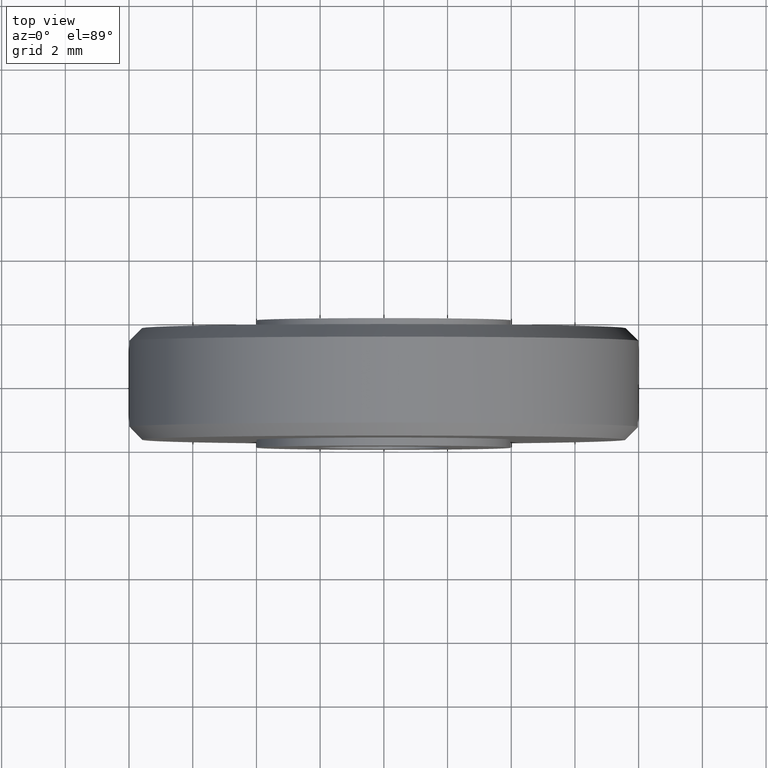
[diagram: clean part render]
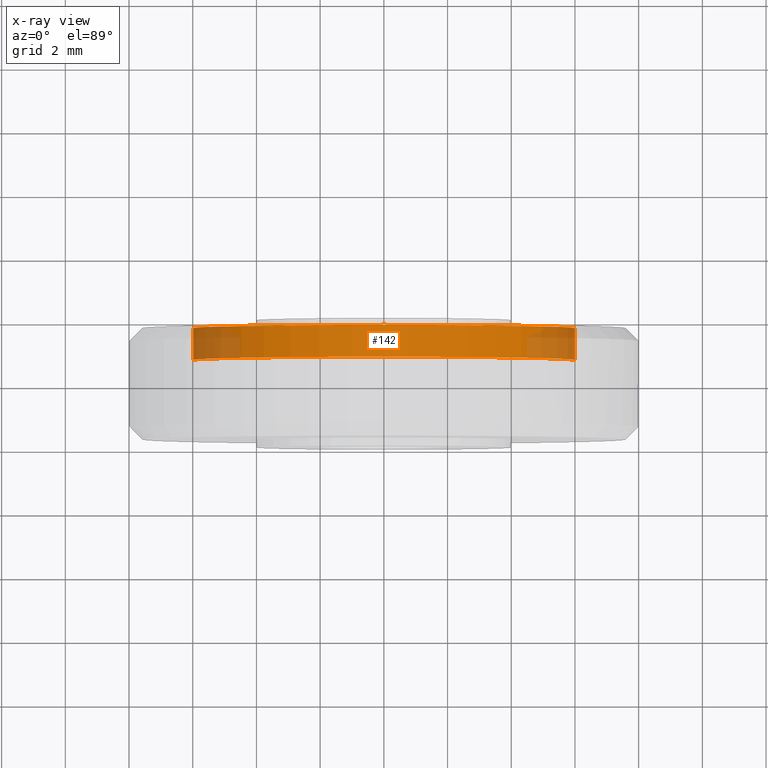
[diagram: x-ray — body ghosted, one internal face saturated and labeled with its STEP entity id]
A machine part, top view, then the same camera in x-ray: the body is ghosted and one INTERNAL B-rep face — a face not visible from any outside direction — is saturated and labeled: STEP entity #142.
In plain terms, the highlighted face is a freeform B-spline surface patch.
Its self-contained STEP definition (entity closure, byte-faithful):
#44=CARTESIAN_POINT('',(-5.981504002398766,2.725000000000000,0.470754574367073));
#45=CARTESIAN_POINT('',(-5.510749428031692,2.725000000000000,6.452258576765839));
#46=CARTESIAN_POINT('',(0.470754574367073,2.725000000000000,5.981504002398766));
#47=CARTESIAN_POINT('',(6.452258576765839,2.725000000000000,5.510749428031692));
#48=CARTESIAN_POINT('',(5.981504002398766,2.725000000000000,-0.470754574367073));
#49=CARTESIAN_POINT('',(-5.981504002398766,3.775625000000001,0.470754574367073));
#50=CARTESIAN_POINT('',(-5.510749428031692,3.775625000000000,6.452258576765839));
#51=CARTESIAN_POINT('',(0.470754574367073,3.775625000000001,5.981504002398766));
#52=CARTESIAN_POINT('',(6.452258576765839,3.775625000000000,5.510749428031692));
#53=CARTESIAN_POINT('',(5.981504002398766,3.775625000000001,-0.470754574367073));
#61=(BOUNDED_SURFACE()B_SPLINE_SURFACE(2,1,((#44,#49),(#45,#50),(#46,#51),(#47,#52),(#48,#53)),.UNSPECIFIED.,.F.,.F.,.U.)B_SPLINE_SURFACE_WITH_KNOTS((3,2,3),(2,2),(0.0,9.941125496954280,19.882250993908560),(0.0,1.0),.UNSPECIFIED.)GEOMETRIC_REPRESENTATION_ITEM()RATIONAL_B_SPLINE_SURFACE(((1.0,1.0),(0.707106781186548,0.707106781186548),(1.0,1.0),(0.707106781186548,0.707106781186548),(1.0,1.0)))REPRESENTATION_ITEM('')SURFACE());
#62=CARTESIAN_POINT('',(0.0,2.750000000000000,6.0));
#63=VERTEX_POINT('',#62);
#64=CARTESIAN_POINT('',(-5.981504336583802,2.749999999999931,0.470750328105054));
#65=VERTEX_POINT('',#64);
#66=CARTESIAN_POINT('',(0.0,2.750000000000000,6.0));
#67=CARTESIAN_POINT('',(-5.546346899467104,2.750000000000000,6.0));
#68=CARTESIAN_POINT('',(-5.981504336583802,2.749999999999931,0.470750328105054));
#76=(BOUNDED_CURVE()B_SPLINE_CURVE(2,(#66,#67,#68),.UNSPECIFIED.,.F.,.U.)B_SPLINE_CURVE_WITH_KNOTS((3,3),(0.0,0.236331422326802),.UNSPECIFIED.)CURVE()GEOMETRIC_REPRESENTATION_ITEM()RATIONAL_B_SPLINE_CURVE((1.0,0.723120516031767,0.969723610138121))REPRESENTATION_ITEM(''));
#77=EDGE_CURVE('',#63,#65,#76,.T.);
#78=ORIENTED_EDGE('',*,*,#77,.T.);
#79=CARTESIAN_POINT('',(-5.981504332555334,3.750000000000000,0.470750379292515));
#80=VERTEX_POINT('',#79);
#81=CARTESIAN_POINT('',(-5.981504336583802,2.749999999999931,0.470750328105054));
#82=CARTESIAN_POINT('',(-5.981504332555334,3.750000000000000,0.470750379292515));
#83=QUASI_UNIFORM_CURVE('',1,(#81,#82),.UNSPECIFIED.,.F.,.U.);
#84=EDGE_CURVE('',#65,#80,#83,.T.);
#85=ORIENTED_EDGE('',*,*,#84,.T.);
#86=CARTESIAN_POINT('',(0.0,3.750000000000000,6.0));
#87=VERTEX_POINT('',#86);
#88=CARTESIAN_POINT('',(0.0,3.750000000000000,6.0));
#89=CARTESIAN_POINT('',(-5.546346851856796,3.750000000000000,6.0));
#90=CARTESIAN_POINT('',(-5.981504332555335,3.750000000000000,0.470750379292515));
#98=(BOUNDED_CURVE()B_SPLINE_CURVE(2,(#88,#89,#90),.UNSPECIFIED.,.F.,.U.)B_SPLINE_CURVE_WITH_KNOTS((3,3),(0.0,0.236331420859815),.UNSPECIFIED.)CURVE()GEOMETRIC_REPRESENTATION_ITEM()RATIONAL_B_SPLINE_CURVE((1.0,0.723120517750448,0.969723607076629))REPRESENTATION_ITEM(''));
#99=EDGE_CURVE('',#87,#80,#98,.T.);
#100=ORIENTED_EDGE('',*,*,#99,.F.);
#101=CARTESIAN_POINT('',(5.981504332555334,3.750000000000000,-0.470750379292515));
#102=VERTEX_POINT('',#101);
#103=CARTESIAN_POINT('',(5.981504332555335,3.750000000000000,-0.470750379292515));
#104=CARTESIAN_POINT('',(6.0,3.750000000000000,-0.235738534774877));
#105=CARTESIAN_POINT('',(6.0,3.750000000000000,0.0));
#106=CARTESIAN_POINT('',(6.0,3.749999999999999,6.0));
#107=CARTESIAN_POINT('',(0.0,3.750000000000000,6.0));
#115=(BOUNDED_CURVE()B_SPLINE_CURVE(2,(#103,#104,#105,#106,#107),.UNSPECIFIED.,.F.,.U.)B_SPLINE_CURVE_WITH_KNOTS((3,2,3),(0.736331420859815,0.750000000000000,1.0),.UNSPECIFIED.)CURVE()GEOMETRIC_REPRESENTATION_ITEM()RATIONAL_B_SPLINE_CURVE((0.969723607076629,0.983986263436099,1.0,0.707106781186548,1.0))REPRESENTATION_ITEM(''));
#116=EDGE_CURVE('',#102,#87,#115,.T.);
#117=ORIENTED_EDGE('',*,*,#116,.F.);
#118=CARTESIAN_POINT('',(5.981504336583802,2.749999999999931,-0.470750328105053));
#119=VERTEX_POINT('',#118);
#120=CARTESIAN_POINT('',(5.981504336583802,2.749999999999931,-0.470750328105053));
#121=CARTESIAN_POINT('',(5.981504332555334,3.750000000000000,-0.470750379292515));
#122=QUASI_UNIFORM_CURVE('',1,(#120,#121),.UNSPECIFIED.,.F.,.U.);
#123=EDGE_CURVE('',#119,#102,#122,.T.);
#124=ORIENTED_EDGE('',*,*,#123,.F.);
#125=CARTESIAN_POINT('',(5.981504336583802,2.749999999999931,-0.470750328105053));
#126=CARTESIAN_POINT('',(6.0,2.750000000000000,-0.235738509062377));
#127=CARTESIAN_POINT('',(6.0,2.750000000000000,0.0));
#128=CARTESIAN_POINT('',(6.0,2.750000000000000,6.0));
#129=CARTESIAN_POINT('',(0.0,2.750000000000000,6.0));
#137=(BOUNDED_CURVE()B_SPLINE_CURVE(2,(#125,#126,#127,#128,#129),.UNSPECIFIED.,.F.,.U.)B_SPLINE_CURVE_WITH_KNOTS((3,2,3),(0.736331422326802,0.750000000000000,1.0),.UNSPECIFIED.)CURVE()GEOMETRIC_REPRESENTATION_ITEM()RATIONAL_B_SPLINE_CURVE((0.969723610138121,0.983986265154781,1.0,0.707106781186548,1.0))REPRESENTATION_ITEM(''));
#138=EDGE_CURVE('',#119,#63,#137,.T.);
#139=ORIENTED_EDGE('',*,*,#138,.T.);
#140=EDGE_LOOP('',(#78,#85,#100,#117,#124,#139));
#141=FACE_OUTER_BOUND('',#140,.T.);
#142=ADVANCED_FACE('',(#141),#61,.F.);